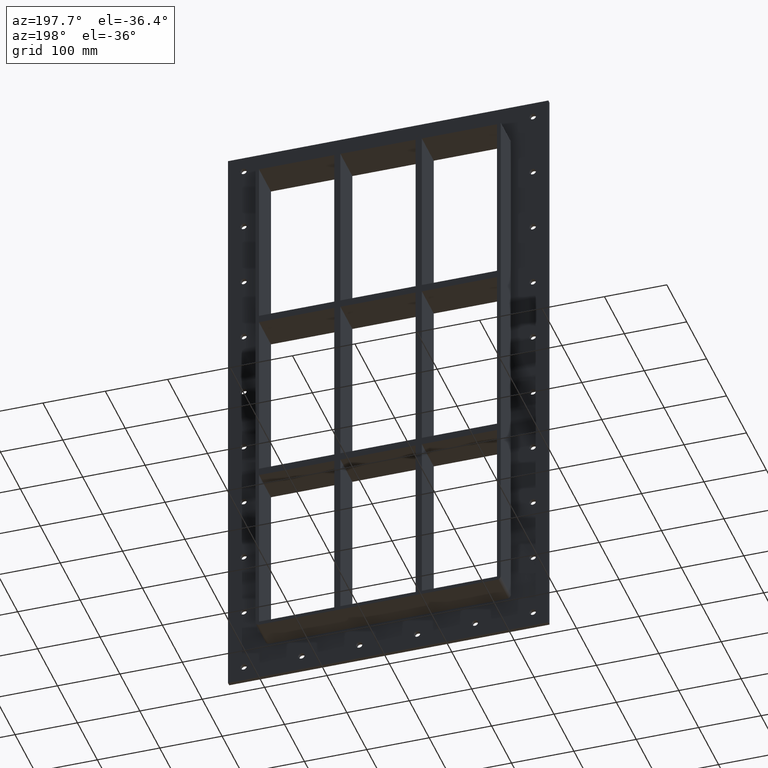
[diagram: clean part render]
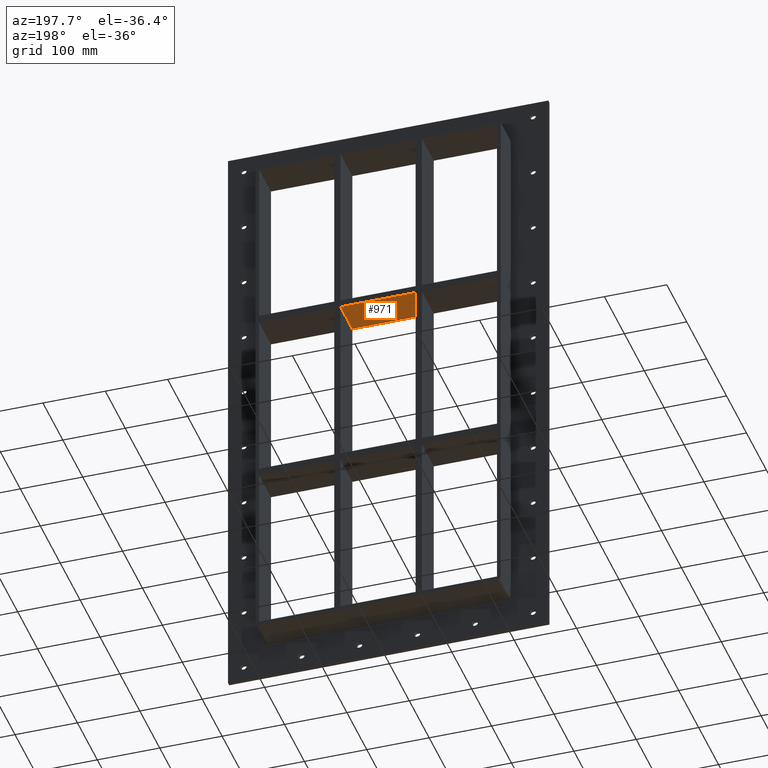
[diagram: same view with one face highlighted and labeled with its STEP entity id]
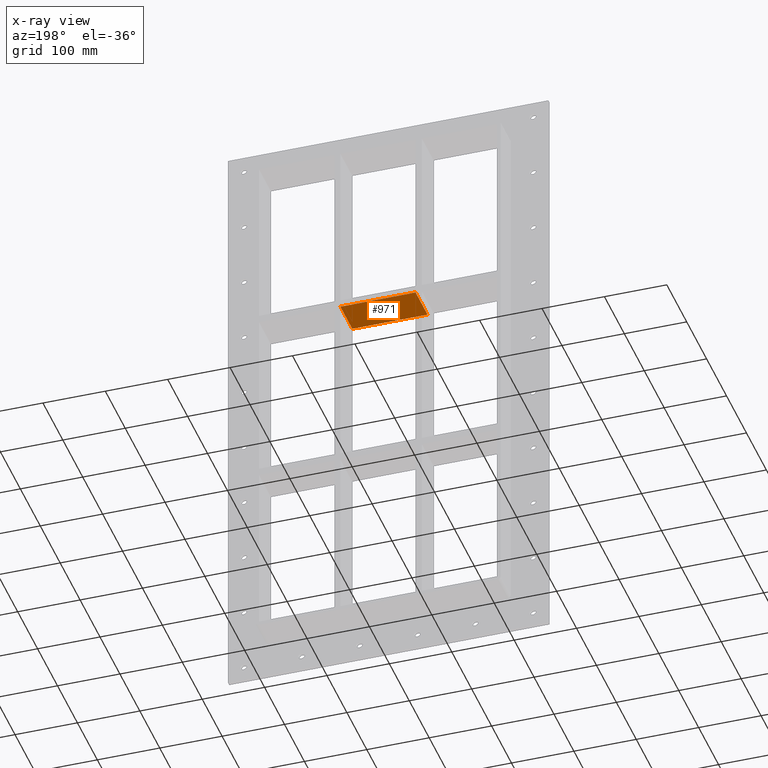
[diagram: x-ray of the same camera — body ghosted, the highlighted face saturated]
A machine part, auxiliary view. The second image highlights one B-rep face of the part: STEP entity #971.
The next image is the same camera in x-ray: the body ghosted, the highlighted face saturated — about 0% of this face is hidden behind the body in this view.
In plain terms, the highlighted planar face has unit normal (0, 0, -1).
Its self-contained STEP definition (entity closure, byte-faithful):
#932=CARTESIAN_POINT('',(190.74999999999818,-3.0,138.99999999999071));
#933=DIRECTION('',(0.0,0.0,-1.0));
#934=DIRECTION('',(-1.0,0.0,0.0));
#935=AXIS2_PLACEMENT_3D('',#932,#933,#934);
#936=PLANE('',#935);
#937=CARTESIAN_POINT('',(60.249999999998622,-3.0,138.99999999999071));
#938=VERTEX_POINT('',#937);
#939=CARTESIAN_POINT('',(60.249999999998622,57.0,138.99999999999071));
#940=VERTEX_POINT('',#939);
#941=CARTESIAN_POINT('',(60.249999999998607,-3.0,138.99999999999071));
#942=DIRECTION('',(0.0,1.0,0.0));
#943=VECTOR('',#942,60.0);
#944=LINE('',#941,#943);
#945=EDGE_CURVE('',#938,#940,#944,.T.);
#946=ORIENTED_EDGE('',*,*,#945,.F.);
#947=CARTESIAN_POINT('',(-60.249999999996362,-3.0,138.99999999999068));
#948=VERTEX_POINT('',#947);
#949=CARTESIAN_POINT('',(60.249999999998607,-3.0,138.99999999999071));
#950=DIRECTION('',(-1.0,0.0,0.0));
#951=VECTOR('',#950,120.49999999999497);
#952=LINE('',#949,#951);
#953=EDGE_CURVE('',#938,#948,#952,.T.);
#954=ORIENTED_EDGE('',*,*,#953,.T.);
#955=CARTESIAN_POINT('',(-60.249999999996362,57.0,138.99999999999068));
#956=VERTEX_POINT('',#955);
#957=CARTESIAN_POINT('',(-60.249999999996362,57.0,138.99999999999065));
#958=DIRECTION('',(0.0,-1.0,0.0));
#959=VECTOR('',#958,60.0);
#960=LINE('',#957,#959);
#961=EDGE_CURVE('',#956,#948,#960,.T.);
#962=ORIENTED_EDGE('',*,*,#961,.F.);
#963=CARTESIAN_POINT('',(60.249999999998607,57.0,138.99999999999071));
#964=DIRECTION('',(-1.0,0.0,0.0));
#965=VECTOR('',#964,120.49999999999497);
#966=LINE('',#963,#965);
#967=EDGE_CURVE('',#940,#956,#966,.T.);
#968=ORIENTED_EDGE('',*,*,#967,.F.);
#969=EDGE_LOOP('',(#946,#954,#962,#968));
#970=FACE_OUTER_BOUND('',#969,.T.);
#971=ADVANCED_FACE('',(#970),#936,.T.);